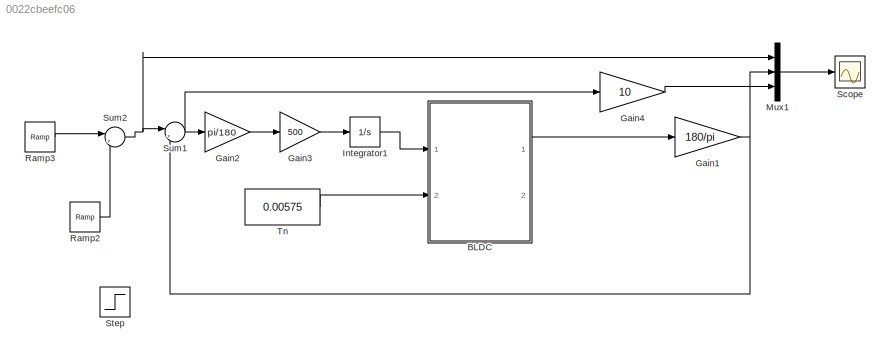
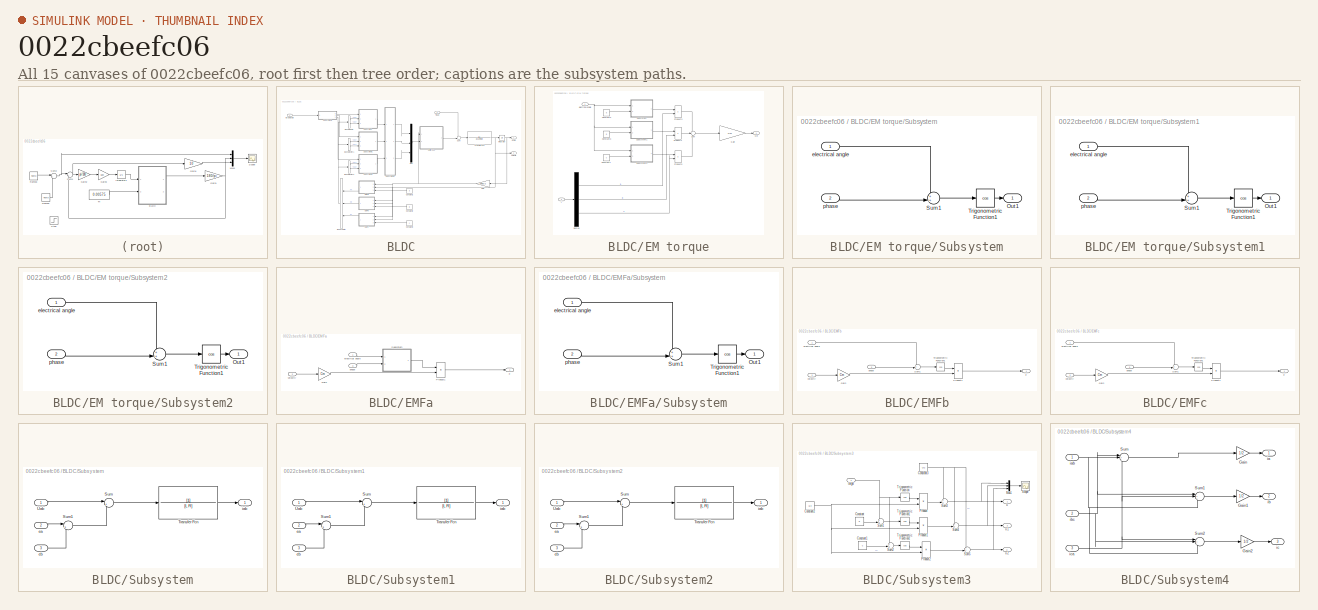
[diagram: thumbnail index - all 15 canvases of the model, root first then tree order]
MODEL slx_0022cbeefc06
KIND model
CONFIG AbsTol = auto
CONFIG EnableMultiTasking = off
CONFIG FixedStep = auto
CONFIG MaxStep = auto
CONFIG MinStep = auto
CONFIG RelTol = 1e-3
CONFIG SampleTimeConstraint = Unconstrained
CONFIG Solver = VariableStepAuto
CONFIG SolverName = VariableStepAuto
CONFIG StartTime = 0.0
CONFIG StopTime = 3
WORKSPACE source: MAT-file member
WORKSPACE Ce = 0.14
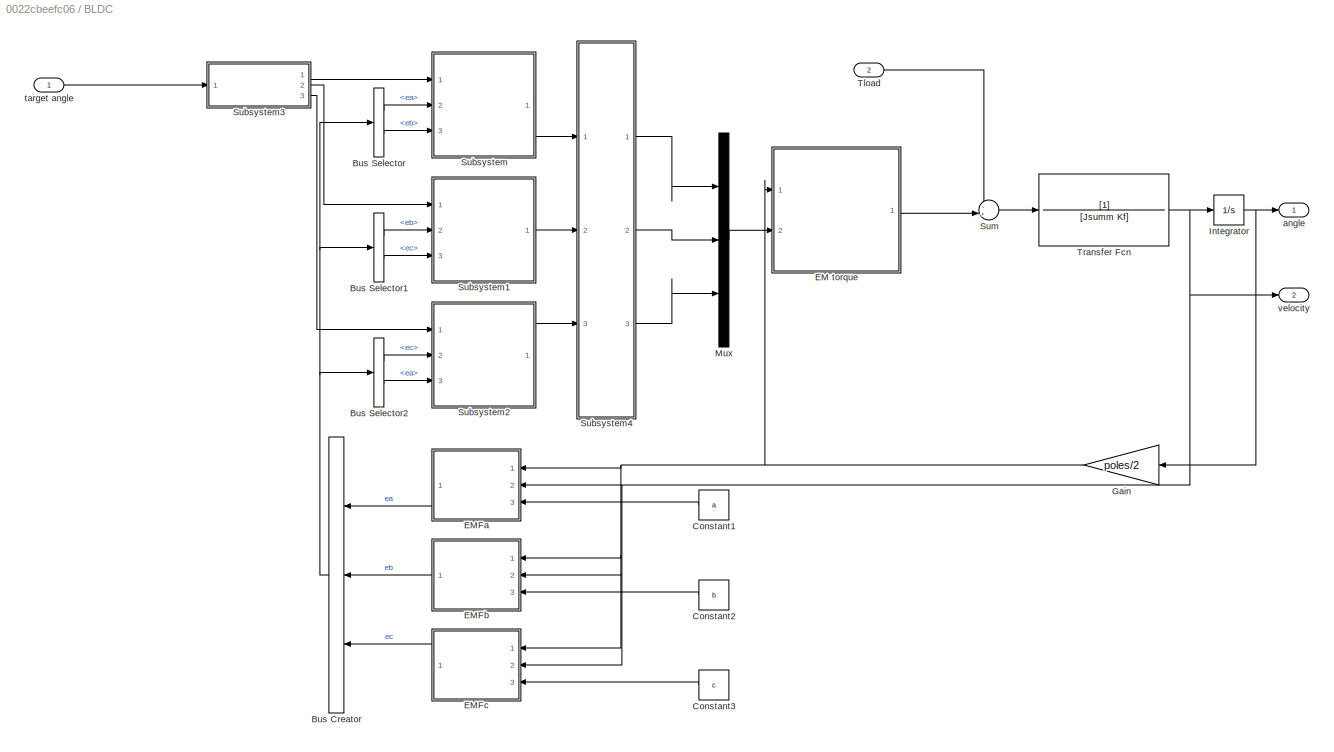
BLOCK [SubSystem] BLDC
  Ports = [2, 2]
  RequestExecContextInheritance = off
BLOCK [BusCreator] BLDC/Bus Creator
  DisplayOption = bar
  InheritFromInputs = on
  Inputs = 3
  Ports = [3, 1]
BLOCK [BusSelector] BLDC/Bus Selector
  OutputAsBus = off
  OutputSignals = ea,eb
  Ports = [1, 2]
BLOCK [BusSelector] BLDC/Bus Selector1
  OutputAsBus = off
  OutputSignals = eb,ec
  Ports = [1, 2]
BLOCK [BusSelector] BLDC/Bus Selector2
  OutputAsBus = off
  OutputSignals = ec,ea
  Ports = [1, 2]
BLOCK [Constant] BLDC/Constant1
  Value = a
BLOCK [Constant] BLDC/Constant2
  Value = b
BLOCK [Constant] BLDC/Constant3
  Value = c
BLOCK [SubSystem] BLDC/EM torque
  Ports = [2, 1]
  RequestExecContextInheritance = off
BLOCK [Constant] BLDC/EM torque/Constant2
  Value = a
BLOCK [Constant] BLDC/EM torque/Constant3
  Value = b
BLOCK [Constant] BLDC/EM torque/Constant4
  Value = c
BLOCK [Demux] BLDC/EM torque/Demux
  DisplayOption = bar
  Outputs = 3
  Ports = [1, 3]
BLOCK [Gain] BLDC/EM torque/Gain
  Gain = Cm
  OutDataTypeStr = Inherit: Inherit via internal rule
  ParamDataTypeStr = Inherit: Inherit via internal rule
  SaturateOnIntegerOverflow = off
BLOCK [Inport] BLDC/EM torque/I
  IconDisplay = Port number
  Port = 2
BLOCK [Outport] BLDC/EM torque/Me
  IconDisplay = Port number
BLOCK [Product] BLDC/EM torque/Product3
  InputSameDT = off
  OutDataTypeStr = Inherit: Inherit via internal rule
  Ports = [2, 1]
  RndMeth = Floor
  SaturateOnIntegerOverflow = off
BLOCK [Product] BLDC/EM torque/Product4
  InputSameDT = off
  OutDataTypeStr = Inherit: Inherit via internal rule
  Ports = [2, 1]
  RndMeth = Floor
  SaturateOnIntegerOverflow = off
BLOCK [Product] BLDC/EM torque/Product5
  InputSameDT = off
  OutDataTypeStr = Inherit: Inherit via internal rule
  Ports = [2, 1]
  RndMeth = Floor
  SaturateOnIntegerOverflow = off
BLOCK [SubSystem] BLDC/EM torque/Subsystem
  Ports = [2, 1]
  RequestExecContextInheritance = off
BLOCK [Outport] BLDC/EM torque/Subsystem/Out1
  IconDisplay = Port number
BLOCK [Sum] BLDC/EM torque/Subsystem/Sum1
  IconShape = round
  InputSameDT = off
  Inputs = ++|
  OutDataTypeStr = Inherit: Inherit via internal rule
  Ports = [2, 1]
  SaturateOnIntegerOverflow = off
BLOCK [Trigonometry] BLDC/EM torque/Subsystem/Trigonometric Function1
  Operator = cos
  Ports = [1, 1]
BLOCK [Inport] BLDC/EM torque/Subsystem/electrical angle
  IconDisplay = Port number
BLOCK [Inport] BLDC/EM torque/Subsystem/phase
  IconDisplay = Port number
  Port = 2
BLOCK [SubSystem] BLDC/EM torque/Subsystem1
  Ports = [2, 1]
  RequestExecContextInheritance = off
BLOCK [Outport] BLDC/EM torque/Subsystem1/Out1
  IconDisplay = Port number
BLOCK [Sum] BLDC/EM torque/Subsystem1/Sum1
  IconShape = round
  InputSameDT = off
  Inputs = ++|
  OutDataTypeStr = Inherit: Inherit via internal rule
  Ports = [2, 1]
  SaturateOnIntegerOverflow = off
BLOCK [Trigonometry] BLDC/EM torque/Subsystem1/Trigonometric Function1
  Operator = cos
  Ports = [1, 1]
BLOCK [Inport] BLDC/EM torque/Subsystem1/electrical angle
  IconDisplay = Port number
BLOCK [Inport] BLDC/EM torque/Subsystem1/phase
  IconDisplay = Port number
  Port = 2
BLOCK [SubSystem] BLDC/EM torque/Subsystem2
  Ports = [2, 1]
  RequestExecContextInheritance = off
BLOCK [Outport] BLDC/EM torque/Subsystem2/Out1
  IconDisplay = Port number
BLOCK [Sum] BLDC/EM torque/Subsystem2/Sum1
  IconShape = round
  InputSameDT = off
  Inputs = ++|
  OutDataTypeStr = Inherit: Inherit via internal rule
  Ports = [2, 1]
  SaturateOnIntegerOverflow = off
BLOCK [Trigonometry] BLDC/EM torque/Subsystem2/Trigonometric Function1
  Operator = cos
  Ports = [1, 1]
BLOCK [Inport] BLDC/EM torque/Subsystem2/electrical angle
  IconDisplay = Port number
BLOCK [Inport] BLDC/EM torque/Subsystem2/phase
  IconDisplay = Port number
  Port = 2
BLOCK [Sum] BLDC/EM torque/Sum
  IconShape = round
  InputSameDT = off
  Inputs = +++
  OutDataTypeStr = Inherit: Inherit via internal rule
  Ports = [3, 1]
  SaturateOnIntegerOverflow = off
BLOCK [Inport] BLDC/EM torque/electrical angle
  IconDisplay = Port number
BLOCK [SubSystem] BLDC/EMFa
  Ports = [3, 1]
  RequestExecContextInheritance = off
BLOCK [Gain] BLDC/EMFa/Gain
  Gain = Cm
  OutDataTypeStr = Inherit: Inherit via internal rule
  ParamDataTypeStr = Inherit: Inherit via internal rule
  SaturateOnIntegerOverflow = off
BLOCK [Product] BLDC/EMFa/Product1
  InputSameDT = off
  OutDataTypeStr = Inherit: Inherit via internal rule
  Ports = [2, 1]
  RndMeth = Floor
  SaturateOnIntegerOverflow = off
BLOCK [SubSystem] BLDC/EMFa/Subsystem
  Ports = [2, 1]
  RequestExecContextInheritance = off
BLOCK [Outport] BLDC/EMFa/Subsystem/Out1
  IconDisplay = Port number
BLOCK [Sum] BLDC/EMFa/Subsystem/Sum1
  IconShape = round
  InputSameDT = off
  Inputs = ++|
  OutDataTypeStr = Inherit: Inherit via internal rule
  Ports = [2, 1]
  SaturateOnIntegerOverflow = off
BLOCK [Trigonometry] BLDC/EMFa/Subsystem/Trigonometric Function1
  Operator = cos
  Ports = [1, 1]
BLOCK [Inport] BLDC/EMFa/Subsystem/electrical angle
  IconDisplay = Port number
BLOCK [Inport] BLDC/EMFa/Subsystem/phase
  IconDisplay = Port number
  Port = 2
BLOCK [Outport] BLDC/EMFa/e
  IconDisplay = Port number
BLOCK [Inport] BLDC/EMFa/electrical angle
  IconDisplay = Port number
BLOCK [Inport] BLDC/EMFa/phase
  IconDisplay = Port number
  Port = 3
BLOCK [Inport] BLDC/EMFa/velocity
  IconDisplay = Port number
  Port = 2
BLOCK [SubSystem] BLDC/EMFb
  Ports = [3, 1]
  RequestExecContextInheritance = off
BLOCK [Gain] BLDC/EMFb/Gain
  Gain = Cm
  OutDataTypeStr = Inherit: Inherit via internal rule
  ParamDataTypeStr = Inherit: Inherit via internal rule
  SaturateOnIntegerOverflow = off
BLOCK [Product] BLDC/EMFb/Product1
  InputSameDT = off
  OutDataTypeStr = Inherit: Inherit via internal rule
  Ports = [2, 1]
  RndMeth = Floor
  SaturateOnIntegerOverflow = off
BLOCK [Sum] BLDC/EMFb/Sum1
  IconShape = round
  InputSameDT = off
  Inputs = ++|
  OutDataTypeStr = Inherit: Inherit via internal rule
  Ports = [2, 1]
  SaturateOnIntegerOverflow = off
BLOCK [Trigonometry] BLDC/EMFb/Trigonometric Function1
  Operator = cos
  Ports = [1, 1]
BLOCK [Outport] BLDC/EMFb/e
  IconDisplay = Port number
BLOCK [Inport] BLDC/EMFb/electrical angle
  IconDisplay = Port number
BLOCK [Inport] BLDC/EMFb/phase
  IconDisplay = Port number
  Port = 3
BLOCK [Inport] BLDC/EMFb/velocity
  IconDisplay = Port number
  Port = 2
BLOCK [SubSystem] BLDC/EMFc
  Ports = [3, 1]
  RequestExecContextInheritance = off
BLOCK [Gain] BLDC/EMFc/Gain
  Gain = Cm
  OutDataTypeStr = Inherit: Inherit via internal rule
  ParamDataTypeStr = Inherit: Inherit via internal rule
  SaturateOnIntegerOverflow = off
BLOCK [Product] BLDC/EMFc/Product1
  InputSameDT = off
  OutDataTypeStr = Inherit: Inherit via internal rule
  Ports = [2, 1]
  RndMeth = Floor
  SaturateOnIntegerOverflow = off
BLOCK [Sum] BLDC/EMFc/Sum1
  IconShape = round
  InputSameDT = off
  Inputs = ++|
  OutDataTypeStr = Inherit: Inherit via internal rule
  Ports = [2, 1]
  SaturateOnIntegerOverflow = off
BLOCK [Trigonometry] BLDC/EMFc/Trigonometric Function1
  Operator = cos
  Ports = [1, 1]
BLOCK [Outport] BLDC/EMFc/e
  IconDisplay = Port number
BLOCK [Inport] BLDC/EMFc/electrical angle
  IconDisplay = Port number
BLOCK [Inport] BLDC/EMFc/phase
  IconDisplay = Port number
  Port = 3
BLOCK [Inport] BLDC/EMFc/velocity
  IconDisplay = Port number
  Port = 2
BLOCK [Gain] BLDC/Gain
  Gain = poles/2
  OutDataTypeStr = Inherit: Inherit via internal rule
  ParamDataTypeStr = Inherit: Inherit via internal rule
  SaturateOnIntegerOverflow = off
BLOCK [Integrator] BLDC/Integrator
  Ports = [1, 1]
BLOCK [Mux] BLDC/Mux
  DisplayOption = bar
  Inputs = 3
  Ports = [3, 1]
BLOCK [SubSystem] BLDC/Subsystem
  Ports = [3, 1]
  RequestExecContextInheritance = off
BLOCK [Sum] BLDC/Subsystem/Sum
  IconShape = round
  InputSameDT = off
  Inputs = |+-
  OutDataTypeStr = Inherit: Inherit via internal rule
  Ports = [2, 1]
  SaturateOnIntegerOverflow = off
BLOCK [Sum] BLDC/Subsystem/Sum1
  IconShape = round
  InputSameDT = off
  Inputs = |+-
  OutDataTypeStr = Inherit: Inherit via internal rule
  Ports = [2, 1]
  SaturateOnIntegerOverflow = off
BLOCK [TransferFcn] BLDC/Subsystem/Transfer Fcn
  Denominator = [L R]
BLOCK [Inport] BLDC/Subsystem/Uab
  IconDisplay = Port number
BLOCK [Inport] BLDC/Subsystem/ea 
  IconDisplay = Port number
  Port = 2
BLOCK [Inport] BLDC/Subsystem/eb
  IconDisplay = Port number
  Port = 3
BLOCK [Outport] BLDC/Subsystem/iab
  IconDisplay = Port number
BLOCK [SubSystem] BLDC/Subsystem1
  Ports = [3, 1]
  RequestExecContextInheritance = off
BLOCK [Sum] BLDC/Subsystem1/Sum
  IconShape = round
  InputSameDT = off
  Inputs = |+-
  OutDataTypeStr = Inherit: Inherit via internal rule
  Ports = [2, 1]
  SaturateOnIntegerOverflow = off
BLOCK [Sum] BLDC/Subsystem1/Sum1
  IconShape = round
  InputSameDT = off
  Inputs = |+-
  OutDataTypeStr = Inherit: Inherit via internal rule
  Ports = [2, 1]
  SaturateOnIntegerOverflow = off
BLOCK [TransferFcn] BLDC/Subsystem1/Transfer Fcn
  Denominator = [L R]
BLOCK [Inport] BLDC/Subsystem1/Uab
  IconDisplay = Port number
BLOCK [Inport] BLDC/Subsystem1/ea 
  IconDisplay = Port number
  Port = 2
BLOCK [Inport] BLDC/Subsystem1/eb
  IconDisplay = Port number
  Port = 3
BLOCK [Outport] BLDC/Subsystem1/iab
  IconDisplay = Port number
BLOCK [SubSystem] BLDC/Subsystem2
  Ports = [3, 1]
  RequestExecContextInheritance = off
BLOCK [Sum] BLDC/Subsystem2/Sum
  IconShape = round
  InputSameDT = off
  Inputs = |+-
  OutDataTypeStr = Inherit: Inherit via internal rule
  Ports = [2, 1]
  SaturateOnIntegerOverflow = off
BLOCK [Sum] BLDC/Subsystem2/Sum1
  IconShape = round
  InputSameDT = off
  Inputs = |+-
  OutDataTypeStr = Inherit: Inherit via internal rule
  Ports = [2, 1]
  SaturateOnIntegerOverflow = off
BLOCK [TransferFcn] BLDC/Subsystem2/Transfer Fcn
  Denominator = [L R]
BLOCK [Inport] BLDC/Subsystem2/Uab
  IconDisplay = Port number
BLOCK [Inport] BLDC/Subsystem2/ea 
  IconDisplay = Port number
  Port = 2
BLOCK [Inport] BLDC/Subsystem2/eb
  IconDisplay = Port number
  Port = 3
BLOCK [Outport] BLDC/Subsystem2/iab
  IconDisplay = Port number
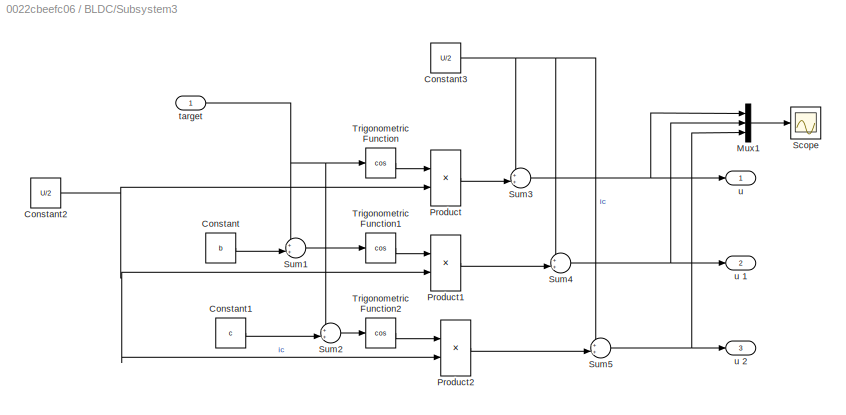
BLOCK [SubSystem] BLDC/Subsystem3
  Ports = [1, 3]
  RequestExecContextInheritance = off
BLOCK [Constant] BLDC/Subsystem3/Constant
  Value = b
BLOCK [Constant] BLDC/Subsystem3/Constant1
  Value = c
BLOCK [Constant] BLDC/Subsystem3/Constant2
  Value = U/2
BLOCK [Constant] BLDC/Subsystem3/Constant3
  Value = U/2
BLOCK [Mux] BLDC/Subsystem3/Mux1
  DisplayOption = bar
  Inputs = 3
  Ports = [3, 1]
BLOCK [Product] BLDC/Subsystem3/Product
  InputSameDT = off
  OutDataTypeStr = Inherit: Inherit via internal rule
  Ports = [2, 1]
  RndMeth = Floor
  SaturateOnIntegerOverflow = off
BLOCK [Product] BLDC/Subsystem3/Product1
  InputSameDT = off
  OutDataTypeStr = Inherit: Inherit via internal rule
  Ports = [2, 1]
  RndMeth = Floor
  SaturateOnIntegerOverflow = off
BLOCK [Product] BLDC/Subsystem3/Product2
  InputSameDT = off
  OutDataTypeStr = Inherit: Inherit via internal rule
  Ports = [2, 1]
  RndMeth = Floor
  SaturateOnIntegerOverflow = off
BLOCK [Scope] BLDC/Subsystem3/Scope
  Floating = off
  NumInputPorts = 1
  Ports = [1]
  ScopeSpecificationString = Simulink.scopes.TimeScopeBlockCfg('CurrentConfiguration', extmgr.ConfigurationSet(extmgr.Configuration('Core','General UI',true),extmgr.Configuration('Core','Source UI',true),extmgr.Configuration('Sources','WiredSimulink',true,'DataLoggingVariableName','ScopeData1'),extmgr.Configuration('Visuals','Time Domain',true,'SerializedDisplays',{struct('MinYLimReal','-0.25','MaxYLimReal','2.25','YLabelReal...<+1435ch>
BLOCK [Sum] BLDC/Subsystem3/Sum1
  IconShape = round
  InputSameDT = off
  Inputs = ++|
  OutDataTypeStr = Inherit: Inherit via internal rule
  Ports = [2, 1]
  SaturateOnIntegerOverflow = off
BLOCK [Sum] BLDC/Subsystem3/Sum2
  IconShape = round
  InputSameDT = off
  Inputs = ++|
  OutDataTypeStr = Inherit: Inherit via internal rule
  Ports = [2, 1]
  SaturateOnIntegerOverflow = off
BLOCK [Sum] BLDC/Subsystem3/Sum3
  IconShape = round
  InputSameDT = off
  Inputs = ++|
  OutDataTypeStr = Inherit: Inherit via internal rule
  Ports = [2, 1]
  SaturateOnIntegerOverflow = off
BLOCK [Sum] BLDC/Subsystem3/Sum4
  IconShape = round
  InputSameDT = off
  Inputs = ++|
  OutDataTypeStr = Inherit: Inherit via internal rule
  Ports = [2, 1]
  SaturateOnIntegerOverflow = off
BLOCK [Sum] BLDC/Subsystem3/Sum5
  IconShape = round
  InputSameDT = off
  Inputs = ++|
  OutDataTypeStr = Inherit: Inherit via internal rule
  Ports = [2, 1]
  SaturateOnIntegerOverflow = off
BLOCK [Trigonometry] BLDC/Subsystem3/Trigonometric Function
  Operator = cos
  Ports = [1, 1]
BLOCK [Trigonometry] BLDC/Subsystem3/Trigonometric Function1
  Operator = cos
  Ports = [1, 1]
BLOCK [Trigonometry] BLDC/Subsystem3/Trigonometric Function2
  Operator = cos
  Ports = [1, 1]
BLOCK [Inport] BLDC/Subsystem3/target
  IconDisplay = Port number
BLOCK [Outport] BLDC/Subsystem3/u 
  IconDisplay = Port number
BLOCK [Outport] BLDC/Subsystem3/u 1
  IconDisplay = Port number
  Port = 2
BLOCK [Outport] BLDC/Subsystem3/u 2
  IconDisplay = Port number
  Port = 3
BLOCK [SubSystem] BLDC/Subsystem4
  Ports = [3, 3]
  RequestExecContextInheritance = off
BLOCK [Gain] BLDC/Subsystem4/Gain
  Gain = 1/2
  OutDataTypeStr = Inherit: Inherit via internal rule
  ParamDataTypeStr = Inherit: Inherit via internal rule
  SaturateOnIntegerOverflow = off
BLOCK [Gain] BLDC/Subsystem4/Gain1
  Gain = 1/2
  OutDataTypeStr = Inherit: Inherit via internal rule
  ParamDataTypeStr = Inherit: Inherit via internal rule
  SaturateOnIntegerOverflow = off
BLOCK [Gain] BLDC/Subsystem4/Gain2
  Gain = 1/2
  OutDataTypeStr = Inherit: Inherit via internal rule
  ParamDataTypeStr = Inherit: Inherit via internal rule
  SaturateOnIntegerOverflow = off
BLOCK [Sum] BLDC/Subsystem4/Sum
  IconShape = round
  InputSameDT = off
  Inputs = |+--
  OutDataTypeStr = Inherit: Inherit via internal rule
  Ports = [3, 1]
  SaturateOnIntegerOverflow = off
BLOCK [Sum] BLDC/Subsystem4/Sum1
  IconShape = round
  InputSameDT = off
  Inputs = |+--
  OutDataTypeStr = Inherit: Inherit via internal rule
  Ports = [3, 1]
  SaturateOnIntegerOverflow = off
BLOCK [Sum] BLDC/Subsystem4/Sum2
  IconShape = round
  InputSameDT = off
  Inputs = |+--
  OutDataTypeStr = Inherit: Inherit via internal rule
  Ports = [3, 1]
  SaturateOnIntegerOverflow = off
BLOCK [Outport] BLDC/Subsystem4/ia
  IconDisplay = Port number
BLOCK [Inport] BLDC/Subsystem4/iab
  IconDisplay = Port number
BLOCK [Outport] BLDC/Subsystem4/ib
  IconDisplay = Port number
  Port = 2
BLOCK [Inport] BLDC/Subsystem4/ibc 
  IconDisplay = Port number
  Port = 2
BLOCK [Outport] BLDC/Subsystem4/ic
  IconDisplay = Port number
  Port = 3
BLOCK [Inport] BLDC/Subsystem4/ica
  IconDisplay = Port number
  Port = 3
BLOCK [Sum] BLDC/Sum
  IconShape = round
  InputSameDT = off
  Inputs = -+|
  OutDataTypeStr = Inherit: Inherit via internal rule
  Ports = [2, 1]
  SaturateOnIntegerOverflow = off
BLOCK [Inport] BLDC/Tload
  IconDisplay = Port number
  Port = 2
BLOCK [TransferFcn] BLDC/Transfer Fcn
  Denominator = [Jsumm Kf]
BLOCK [Outport] BLDC/angle
  IconDisplay = Port number
BLOCK [Inport] BLDC/target angle
  IconDisplay = Port number
BLOCK [Outport] BLDC/velocity
  IconDisplay = Port number
  Port = 2
BLOCK [Gain] Gain1
  Gain = 180/pi
  OutDataTypeStr = Inherit: Inherit via internal rule
  ParamDataTypeStr = Inherit: Inherit via internal rule
  SaturateOnIntegerOverflow = off
BLOCK [Gain] Gain2
  Gain = pi/180
  OutDataTypeStr = Inherit: Inherit via internal rule
  ParamDataTypeStr = Inherit: Inherit via internal rule
  SaturateOnIntegerOverflow = off
BLOCK [Gain] Gain3
  Gain = 500
  OutDataTypeStr = Inherit: Inherit via internal rule
  ParamDataTypeStr = Inherit: Inherit via internal rule
  SaturateOnIntegerOverflow = off
BLOCK [Gain] Gain4
  Gain = 10
  OutDataTypeStr = Inherit: Inherit via internal rule
  ParamDataTypeStr = Inherit: Inherit via internal rule
  SaturateOnIntegerOverflow = off
BLOCK [Integrator] Integrator1
  Ports = [1, 1]
BLOCK [Mux] Mux1
  DisplayOption = bar
  Inputs = 3
  Ports = [3, 1]
BLOCK [Reference] Ramp2  REF=simulink/Sources/Ramp
  Ports = [0, 1]
  SourceBlock = simulink/Sources/Ramp
  SourceProductBaseCode = SL
  SourceProductName = Simulink
  SourceType = Ramp
BLOCK [Reference] Ramp3  REF=simulink/Sources/Ramp
  Ports = [0, 1]
  SourceBlock = simulink/Sources/Ramp
  SourceProductBaseCode = SL
  SourceProductName = Simulink
  SourceType = Ramp
BLOCK [Scope] Scope
  Floating = off
  NumInputPorts = 1
  Ports = [1]
  ScopeSpecificationString = Simulink.scopes.TimeScopeBlockCfg('CurrentConfiguration', extmgr.ConfigurationSet(extmgr.Configuration('Core','General UI',true),extmgr.Configuration('Core','Source UI',true),extmgr.Configuration('Sources','WiredSimulink',true),extmgr.Configuration('Visuals','Time Domain',true,'SerializedDisplays',{struct('MinYLimReal','-87.42543','MaxYLimReal','179.91334','YLabelReal','','MinYLimMag','0.00000','M...<+1432ch>
BLOCK [Step] Step
  After = 10
  SampleTime = 0
BLOCK [Sum] Sum1
  IconShape = round
  InputSameDT = off
  Inputs = |+-
  OutDataTypeStr = Inherit: Inherit via internal rule
  Ports = [2, 1]
  SaturateOnIntegerOverflow = off
BLOCK [Sum] Sum2
  IconShape = round
  InputSameDT = off
  Inputs = |++
  OutDataTypeStr = Inherit: Inherit via internal rule
  Ports = [2, 1]
  SaturateOnIntegerOverflow = off
BLOCK [Constant] Tn 
  Value = 0.00575
NET BLDC/Bus Creator:1 -> BLDC/Bus Selector1:1, BLDC/Bus Selector2:1, BLDC/Bus Selector:1
LINE BLDC/Bus Selector1:1 -> BLDC/Subsystem1:2
LINE BLDC/Bus Selector1:2 -> BLDC/Subsystem1:3
LINE BLDC/Bus Selector2:1 -> BLDC/Subsystem2:2
LINE BLDC/Bus Selector2:2 -> BLDC/Subsystem2:3
LINE BLDC/Bus Selector:1 -> BLDC/Subsystem:2
LINE BLDC/Bus Selector:2 -> BLDC/Subsystem:3
LINE BLDC/Constant1:1 -> BLDC/EMFa:3
LINE BLDC/Constant2:1 -> BLDC/EMFb:3
LINE BLDC/Constant3:1 -> BLDC/EMFc:3
LINE BLDC/EM torque/Constant2:1 -> BLDC/EM torque/Subsystem:2
LINE BLDC/EM torque/Constant3:1 -> BLDC/EM torque/Subsystem1:2
LINE BLDC/EM torque/Constant4:1 -> BLDC/EM torque/Subsystem2:2
LINE BLDC/EM torque/Demux:1 -> BLDC/EM torque/Product3:2
LINE BLDC/EM torque/Demux:2 -> BLDC/EM torque/Product4:2
LINE BLDC/EM torque/Demux:3 -> BLDC/EM torque/Product5:2
LINE BLDC/EM torque/Gain:1 -> BLDC/EM torque/Me:1
LINE BLDC/EM torque/I:1 -> BLDC/EM torque/Demux:1
LINE BLDC/EM torque/Product3:1 -> BLDC/EM torque/Sum:1
LINE BLDC/EM torque/Product4:1 -> BLDC/EM torque/Sum:2
LINE BLDC/EM torque/Product5:1 -> BLDC/EM torque/Sum:3
LINE BLDC/EM torque/Subsystem/Sum1:1 -> BLDC/EM torque/Subsystem/Trigonometric Function1:1
LINE BLDC/EM torque/Subsystem/Trigonometric Function1:1 -> BLDC/EM torque/Subsystem/Out1:1
LINE BLDC/EM torque/Subsystem/electrical angle:1 -> BLDC/EM torque/Subsystem/Sum1:1
LINE BLDC/EM torque/Subsystem/phase:1 -> BLDC/EM torque/Subsystem/Sum1:2
LINE BLDC/EM torque/Subsystem1/Sum1:1 -> BLDC/EM torque/Subsystem1/Trigonometric Function1:1
LINE BLDC/EM torque/Subsystem1/Trigonometric Function1:1 -> BLDC/EM torque/Subsystem1/Out1:1
LINE BLDC/EM torque/Subsystem1/electrical angle:1 -> BLDC/EM torque/Subsystem1/Sum1:1
LINE BLDC/EM torque/Subsystem1/phase:1 -> BLDC/EM torque/Subsystem1/Sum1:2
LINE BLDC/EM torque/Subsystem1:1 -> BLDC/EM torque/Product4:1
LINE BLDC/EM torque/Subsystem2/Sum1:1 -> BLDC/EM torque/Subsystem2/Trigonometric Function1:1
LINE BLDC/EM torque/Subsystem2/Trigonometric Function1:1 -> BLDC/EM torque/Subsystem2/Out1:1
LINE BLDC/EM torque/Subsystem2/electrical angle:1 -> BLDC/EM torque/Subsystem2/Sum1:1
LINE BLDC/EM torque/Subsystem2/phase:1 -> BLDC/EM torque/Subsystem2/Sum1:2
LINE BLDC/EM torque/Subsystem2:1 -> BLDC/EM torque/Product5:1
LINE BLDC/EM torque/Subsystem:1 -> BLDC/EM torque/Product3:1
LINE BLDC/EM torque/Sum:1 -> BLDC/EM torque/Gain:1
NET BLDC/EM torque/electrical angle:1 -> BLDC/EM torque/Subsystem1:1, BLDC/EM torque/Subsystem2:1, BLDC/EM torque/Subsystem:1
LINE BLDC/EM torque:1 -> BLDC/Sum:2
LINE BLDC/EMFa/Gain:1 -> BLDC/EMFa/Product1:2
LINE BLDC/EMFa/Product1:1 -> BLDC/EMFa/e:1
LINE BLDC/EMFa/Subsystem/Sum1:1 -> BLDC/EMFa/Subsystem/Trigonometric Function1:1
LINE BLDC/EMFa/Subsystem/Trigonometric Function1:1 -> BLDC/EMFa/Subsystem/Out1:1
LINE BLDC/EMFa/Subsystem/electrical angle:1 -> BLDC/EMFa/Subsystem/Sum1:1
LINE BLDC/EMFa/Subsystem/phase:1 -> BLDC/EMFa/Subsystem/Sum1:2
LINE BLDC/EMFa/Subsystem:1 -> BLDC/EMFa/Product1:1
LINE BLDC/EMFa/electrical angle:1 -> BLDC/EMFa/Subsystem:1
LINE BLDC/EMFa/phase:1 -> BLDC/EMFa/Subsystem:2
LINE BLDC/EMFa/velocity:1 -> BLDC/EMFa/Gain:1
LINE BLDC/EMFa:1 -> BLDC/Bus Creator:1
LINE BLDC/EMFb/Gain:1 -> BLDC/EMFb/Product1:2
LINE BLDC/EMFb/Product1:1 -> BLDC/EMFb/e:1
LINE BLDC/EMFb/Sum1:1 -> BLDC/EMFb/Trigonometric Function1:1
LINE BLDC/EMFb/Trigonometric Function1:1 -> BLDC/EMFb/Product1:1
LINE BLDC/EMFb/electrical angle:1 -> BLDC/EMFb/Sum1:1
LINE BLDC/EMFb/phase:1 -> BLDC/EMFb/Sum1:2
LINE BLDC/EMFb/velocity:1 -> BLDC/EMFb/Gain:1
LINE BLDC/EMFb:1 -> BLDC/Bus Creator:2
LINE BLDC/EMFc/Gain:1 -> BLDC/EMFc/Product1:2
LINE BLDC/EMFc/Product1:1 -> BLDC/EMFc/e:1
LINE BLDC/EMFc/Sum1:1 -> BLDC/EMFc/Trigonometric Function1:1
LINE BLDC/EMFc/Trigonometric Function1:1 -> BLDC/EMFc/Product1:1
LINE BLDC/EMFc/electrical angle:1 -> BLDC/EMFc/Sum1:1
LINE BLDC/EMFc/phase:1 -> BLDC/EMFc/Sum1:2
LINE BLDC/EMFc/velocity:1 -> BLDC/EMFc/Gain:1
LINE BLDC/EMFc:1 -> BLDC/Bus Creator:3
NET BLDC/Gain:1 -> BLDC/EM torque:1, BLDC/EMFa:1, BLDC/EMFb:1, BLDC/EMFc:1
NET BLDC/Integrator:1 -> BLDC/Gain:1, BLDC/angle:1
LINE BLDC/Mux:1 -> BLDC/EM torque:2
LINE BLDC/Subsystem/Sum1:1 -> BLDC/Subsystem/Sum:2
LINE BLDC/Subsystem/Sum:1 -> BLDC/Subsystem/Transfer Fcn:1
LINE BLDC/Subsystem/Transfer Fcn:1 -> BLDC/Subsystem/iab:1
LINE BLDC/Subsystem/Uab:1 -> BLDC/Subsystem/Sum:1
LINE BLDC/Subsystem/ea :1 -> BLDC/Subsystem/Sum1:1
LINE BLDC/Subsystem/eb:1 -> BLDC/Subsystem/Sum1:2
LINE BLDC/Subsystem1/Sum1:1 -> BLDC/Subsystem1/Sum:2
LINE BLDC/Subsystem1/Sum:1 -> BLDC/Subsystem1/Transfer Fcn:1
LINE BLDC/Subsystem1/Transfer Fcn:1 -> BLDC/Subsystem1/iab:1
LINE BLDC/Subsystem1/Uab:1 -> BLDC/Subsystem1/Sum:1
LINE BLDC/Subsystem1/ea :1 -> BLDC/Subsystem1/Sum1:1
LINE BLDC/Subsystem1/eb:1 -> BLDC/Subsystem1/Sum1:2
LINE BLDC/Subsystem1:1 -> BLDC/Subsystem4:2
LINE BLDC/Subsystem2/Sum1:1 -> BLDC/Subsystem2/Sum:2
LINE BLDC/Subsystem2/Sum:1 -> BLDC/Subsystem2/Transfer Fcn:1
LINE BLDC/Subsystem2/Transfer Fcn:1 -> BLDC/Subsystem2/iab:1
LINE BLDC/Subsystem2/Uab:1 -> BLDC/Subsystem2/Sum:1
LINE BLDC/Subsystem2/ea :1 -> BLDC/Subsystem2/Sum1:1
LINE BLDC/Subsystem2/eb:1 -> BLDC/Subsystem2/Sum1:2
LINE BLDC/Subsystem2:1 -> BLDC/Subsystem4:3
LINE BLDC/Subsystem3/Constant1:1 -> BLDC/Subsystem3/Sum2:2
NET BLDC/Subsystem3/Constant2:1 -> BLDC/Subsystem3/Product1:2, BLDC/Subsystem3/Product2:2, BLDC/Subsystem3/Product:2
NET BLDC/Subsystem3/Constant3:1 -> BLDC/Subsystem3/Sum3:1, BLDC/Subsystem3/Sum4:1, BLDC/Subsystem3/Sum5:1
LINE BLDC/Subsystem3/Constant:1 -> BLDC/Subsystem3/Sum1:2
LINE BLDC/Subsystem3/Mux1:1 -> BLDC/Subsystem3/Scope:1
LINE BLDC/Subsystem3/Product1:1 -> BLDC/Subsystem3/Sum4:2
LINE BLDC/Subsystem3/Product2:1 -> BLDC/Subsystem3/Sum5:2
LINE BLDC/Subsystem3/Product:1 -> BLDC/Subsystem3/Sum3:2
LINE BLDC/Subsystem3/Sum1:1 -> BLDC/Subsystem3/Trigonometric Function1:1
LINE BLDC/Subsystem3/Sum2:1 -> BLDC/Subsystem3/Trigonometric Function2:1
NET BLDC/Subsystem3/Sum3:1 -> BLDC/Subsystem3/Mux1:1, BLDC/Subsystem3/u :1
NET BLDC/Subsystem3/Sum4:1 -> BLDC/Subsystem3/Mux1:2, BLDC/Subsystem3/u 1:1
NET BLDC/Subsystem3/Sum5:1 -> BLDC/Subsystem3/Mux1:3, BLDC/Subsystem3/u 2:1
LINE BLDC/Subsystem3/Trigonometric Function1:1 -> BLDC/Subsystem3/Product1:1
LINE BLDC/Subsystem3/Trigonometric Function2:1 -> BLDC/Subsystem3/Product2:1
LINE BLDC/Subsystem3/Trigonometric Function:1 -> BLDC/Subsystem3/Product:1
NET BLDC/Subsystem3/target:1 -> BLDC/Subsystem3/Sum1:1, BLDC/Subsystem3/Sum2:1, BLDC/Subsystem3/Trigonometric Function:1
LINE BLDC/Subsystem3:1 -> BLDC/Subsystem:1
LINE BLDC/Subsystem3:2 -> BLDC/Subsystem1:1
LINE BLDC/Subsystem3:3 -> BLDC/Subsystem2:1
LINE BLDC/Subsystem4/Gain1:1 -> BLDC/Subsystem4/ib:1
LINE BLDC/Subsystem4/Gain2:1 -> BLDC/Subsystem4/ic:1
LINE BLDC/Subsystem4/Gain:1 -> BLDC/Subsystem4/ia:1
LINE BLDC/Subsystem4/Sum1:1 -> BLDC/Subsystem4/Gain1:1
LINE BLDC/Subsystem4/Sum2:1 -> BLDC/Subsystem4/Gain2:1
LINE BLDC/Subsystem4/Sum:1 -> BLDC/Subsystem4/Gain:1
NET BLDC/Subsystem4/iab:1 -> BLDC/Subsystem4/Sum1:3, BLDC/Subsystem4/Sum2:3, BLDC/Subsystem4/Sum:1
NET BLDC/Subsystem4/ibc :1 -> BLDC/Subsystem4/Sum1:1, BLDC/Subsystem4/Sum2:2, BLDC/Subsystem4/Sum:2
NET BLDC/Subsystem4/ica:1 -> BLDC/Subsystem4/Sum1:2, BLDC/Subsystem4/Sum2:1, BLDC/Subsystem4/Sum:3
LINE BLDC/Subsystem4:1 -> BLDC/Mux:1
LINE BLDC/Subsystem4:2 -> BLDC/Mux:2
LINE BLDC/Subsystem4:3 -> BLDC/Mux:3
LINE BLDC/Subsystem:1 -> BLDC/Subsystem4:1
LINE BLDC/Sum:1 -> BLDC/Transfer Fcn:1
LINE BLDC/Tload:1 -> BLDC/Sum:1
NET BLDC/Transfer Fcn:1 -> BLDC/EMFa:2, BLDC/EMFb:2, BLDC/EMFc:2, BLDC/Integrator:1, BLDC/velocity:1
LINE BLDC/target angle:1 -> BLDC/Subsystem3:1
LINE BLDC:1 -> Gain1:1
NET Gain1:1 -> Mux1:2, Sum1:2
LINE Gain2:1 -> Gain3:1
LINE Gain3:1 -> Integrator1:1
LINE Gain4:1 -> Mux1:3
LINE Integrator1:1 -> BLDC:1
LINE Mux1:1 -> Scope:1
LINE Ramp2:1 -> Sum2:2
LINE Ramp3:1 -> Sum2:1
NET Sum1:1 -> Gain2:1, Gain4:1
NET Sum2:1 -> Mux1:1, Sum1:1
LINE Tn :1 -> BLDC:2
note: NET lines group one-source signal fan-out (src -> all destinations, sorted); 1:1 wires keep LINE
